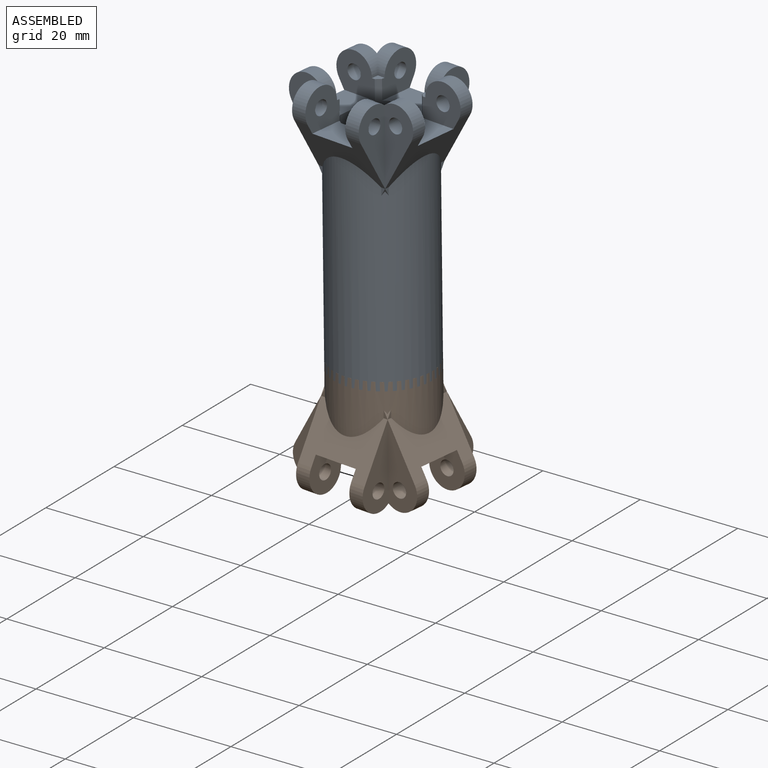
[diagram: assembled view]
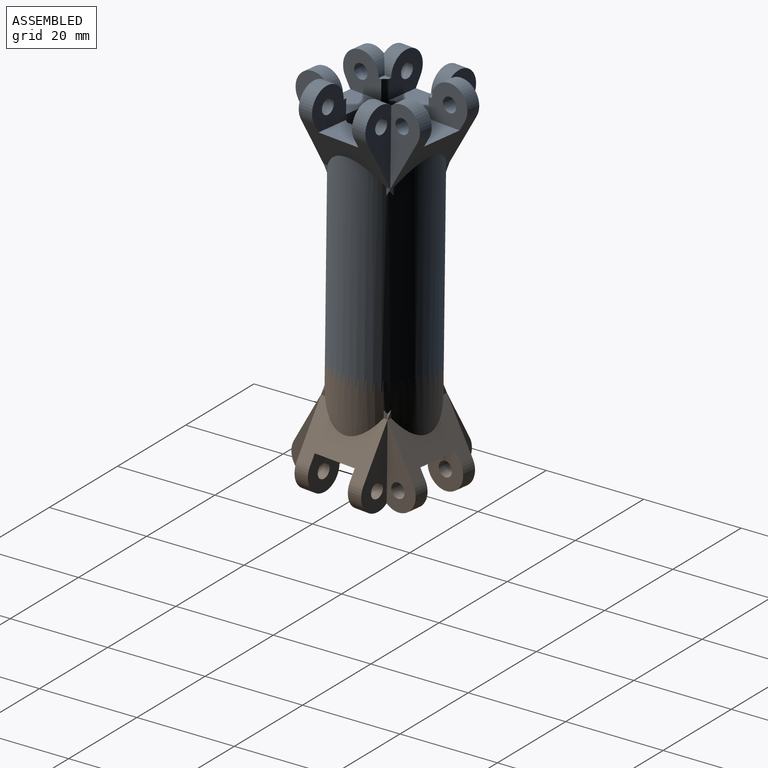
[diagram: assembled view, second angle]
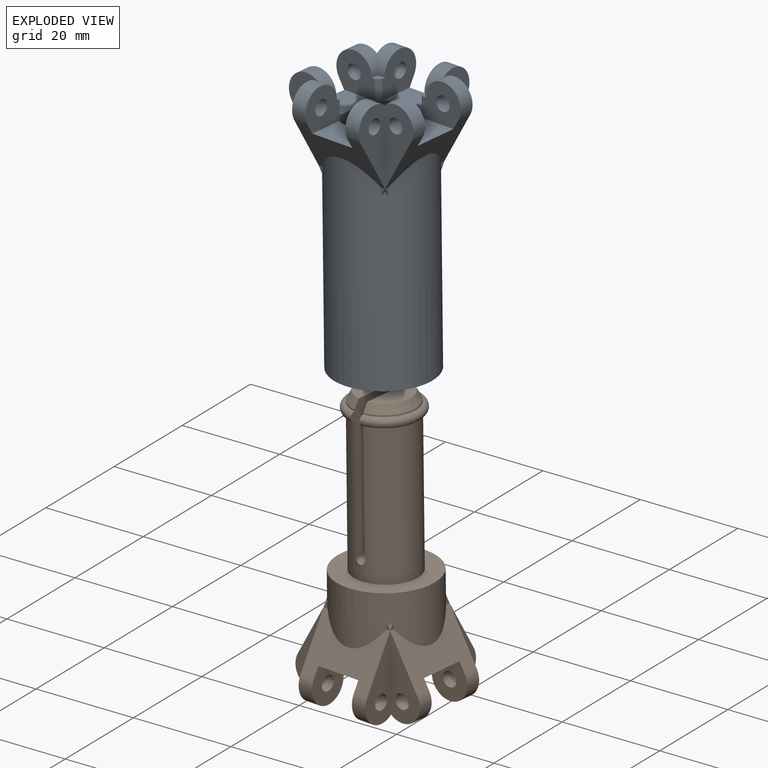
[diagram: exploded view]
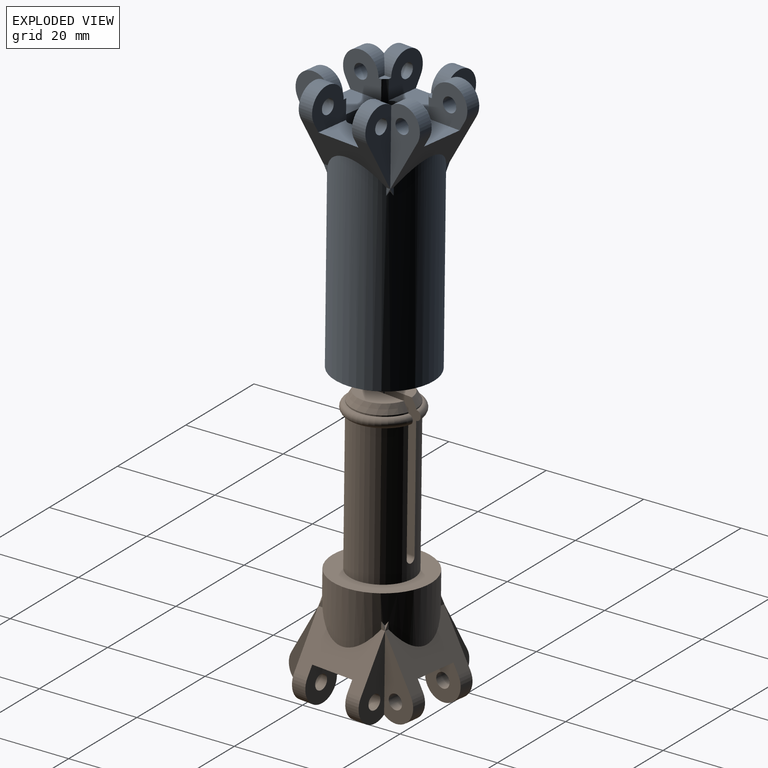
[diagram: exploded view, second angle]
ASSEMBLY  parts=2 mates=2
PART A: 73 faces, bbox 28x28x54 mm
  f0: cylinder r=7mm len=19mm, axis (0,0,-1), area 382.9mm2, adj f1,f3,f9,f12,f14,f18,f29,f32
  f1: plane 1.5x1.5mm, normal (0,0,1), area 1.9mm2, adj f0,f5,f10,f60,f70
  f2: cylinder r=7mm len=29mm, axis (0,0,-1), area 1275.5mm2, adj f28,f72
  f3: plane 1.5x1.5mm, normal (0,0,1), area 1.9mm2, adj f0,f4,f21,f61,f67
  f4: cylinder r=4mm len=8mm, axis (0,1,0), area 40.4mm2, adj f3,f21,f36,f38,f67
  f5: cylinder r=4mm len=8mm, axis (0,1,0), area 40.4mm2, adj f1,f10,f47,f48,f70
  f6: cylinder r=1.5mm len=3mm, axis (0,-1,0), area 28.3mm2, adj f48,f70
  f7: cylinder r=1.5mm len=3mm, axis (0,-1,0), area 28.3mm2, adj f38,f67
  f8: plane 15x10.33mm, normal (0,0.87,-0.5), area 112.8mm2, adj f11,f17,f19,f23,f27,f40,f53,f56
  f9: plane 1.5x1.5mm, normal (0,0,1), area 1.9mm2, adj f0,f11,f49,f58,f69
  f10: cylinder r=4mm len=8mm, axis (-1,0,0), area 40.4mm2, adj f1,f5,f13,f30,f60
  f11: cylinder r=4mm len=8mm, axis (-1,0,0), area 40.4mm2, adj f8,f9,f17,f49,f58
  f12: plane 10.93x7.21mm, normal (0,1,0), area 78.8mm2, adj f0,f29,f59
  f13: plane 15x10.33mm, normal (0,-0.87,-0.5), area 112.8mm2, adj f10,f19,f21,f30,f31,f42,f50,f59
  f14: plane 10.93x7.21mm, normal (0,-1,0), area 78.8mm2, adj f0,f32,f56
  f15: plane 1.53x0.89mm, normal (1,0,0), area 0.7mm2, adj f16,f19,f47
  f16: plane 1.55x0.9mm, normal (0,-0.87,-0.5), area 0.4mm2, adj f15,f19,f51
  f17: plane 16.33x6.5mm, normal (1,0,0), area 58.3mm2, adj f8,f11,f46,f64
  f18: plane 1.5x1.5mm, normal (0,0,1), area 1.9mm2, adj f0,f23,f37,f57,f66
  f19: cylinder r=10mm len=42.01mm, axis (0,0,-1), area 2526.6mm2, adj f8,f13,f15,f16,f20,f22,f24,f25
  f20: plane 1.53x0.89mm, normal (-1,0,0), area 0.7mm2, adj f19,f22,f36
  f21: cylinder r=4mm len=8mm, axis (-1,0,0), area 40.4mm2, adj f3,f4,f13,f31,f61
  f22: plane 1.55x0.9mm, normal (0,-0.87,-0.5), area 0.4mm2, adj f19,f20,f43
  f23: cylinder r=4mm len=8mm, axis (-1,0,0), area 40.4mm2, adj f8,f18,f27,f37,f57
  f24: plane 1.55x0.9mm, normal (0,0.87,-0.5), area 0.4mm2, adj f19,f26,f41
  f25: plane 1.55x0.9mm, normal (0,0.87,-0.5), area 0.4mm2, adj f19,f33,f52
  f26: plane 1.53x0.89mm, normal (-1,0,0), area 0.7mm2, adj f19,f24,f36
  f27: plane 16.33x6.5mm, normal (-1,0,0), area 58.3mm2, adj f8,f23,f35,f65
  f28: plane 20x20mm, normal (0,0,-1), area 160.2mm2, adj f2,f19
  f29: plane 7.21x1.73mm, normal (0,-0.87,-0.5), area 9.8mm2, adj f0,f12
  f30: plane 16.33x6.5mm, normal (1,0,0), area 58.3mm2, adj f10,f13,f48,f63
  f31: plane 16.33x6.5mm, normal (-1,0,0), area 58.3mm2, adj f13,f21,f38,f62
  f32: plane 7.21x1.73mm, normal (0,0.87,-0.5), area 9.8mm2, adj f0,f14
  f33: plane 1.53x0.89mm, normal (1,0,0), area 0.7mm2, adj f19,f25,f47
  f34: plane 7.21x1.73mm, normal (-0.87,0,-0.5), area 9.8mm2, adj f0,f39
  f35: plane 16.33x6.5mm, normal (0,1,0), area 58.3mm2, adj f27,f36,f37,f55
  f36: plane 15x10.33mm, normal (-0.87,0,-0.5), area 112.8mm2, adj f4,f19,f20,f26,f35,f37,f38,f66
  f37: cylinder r=4mm len=8mm, axis (0,1,0), area 40.4mm2, adj f18,f23,f35,f36,f66
  f38: plane 16.33x6.5mm, normal (0,-1,0), area 58.3mm2, adj f4,f7,f31,f36
  f39: plane 10.93x7.21mm, normal (1,0,0), area 78.8mm2, adj f0,f34,f68
  f40: plane 1.53x0.89mm, normal (0,1,0), area 0.7mm2, adj f8,f19,f41
  f41: plane 1.55x0.9mm, normal (-0.87,0,-0.5), area 0.4mm2, adj f19,f24,f40
  f42: plane 1.53x0.89mm, normal (0,-1,0), area 0.7mm2, adj f13,f19,f43
  f43: plane 1.55x0.9mm, normal (-0.87,0,-0.5), area 0.4mm2, adj f19,f22,f42
  f44: plane 7.21x1.73mm, normal (0.87,0,-0.5), area 9.8mm2, adj f0,f45
  f45: plane 10.93x7.21mm, normal (-1,0,0), area 78.8mm2, adj f0,f44,f71
  f46: plane 16.33x6.5mm, normal (0,1,0), area 58.3mm2, adj f17,f47,f49,f54
  f47: plane 15x10.33mm, normal (0.87,0,-0.5), area 112.8mm2, adj f5,f15,f19,f33,f46,f48,f49,f69
  f48: plane 16.33x6.5mm, normal (0,-1,0), area 58.3mm2, adj f5,f6,f30,f47
  f49: cylinder r=4mm len=8mm, axis (0,1,0), area 40.4mm2, adj f9,f11,f46,f47,f69
  f50: plane 1.53x0.89mm, normal (0,-1,0), area 0.7mm2, adj f13,f19,f51
  f51: plane 1.55x0.9mm, normal (0.87,0,-0.5), area 0.4mm2, adj f16,f19,f50
  f52: plane 1.55x0.9mm, normal (0.87,0,-0.5), area 0.4mm2, adj f19,f25,f53
  f53: plane 1.53x0.89mm, normal (0,1,0), area 0.7mm2, adj f8,f19,f52
  f54: cylinder r=1.5mm len=3mm, axis (0,-1,0), area 28.3mm2, adj f46,f69
  f55: cylinder r=1.5mm len=3mm, axis (0,-1,0), area 28.3mm2, adj f35,f66
  f56: plane 9x6.95mm, normal (0,0,1), area 57.3mm2, adj f0,f8,f14,f57,f58
  f57: plane 8.64x8mm, normal (1,0,0), area 50mm2, adj f0,f8,f18,f23,f56,f65
  f58: plane 8.64x8mm, normal (-1,0,0), area 50mm2, adj f0,f8,f9,f11,f56,f64
  f59: plane 9x6.95mm, normal (0,0,1), area 57.3mm2, adj f0,f12,f13,f60,f61
  f60: plane 8.64x8mm, normal (-1,0,0), area 50mm2, adj f0,f1,f10,f13,f59,f63
  f61: plane 8.64x8mm, normal (1,0,0), area 50mm2, adj f0,f3,f13,f21,f59,f62
  f62: cylinder r=1.5mm len=3mm, axis (-1,0,0), area 28.3mm2, adj f31,f61
  f63: cylinder r=1.5mm len=3mm, axis (-1,0,0), area 28.3mm2, adj f30,f60
  f64: cylinder r=1.5mm len=3mm, axis (-1,0,0), area 28.3mm2, adj f17,f58
  f65: cylinder r=1.5mm len=3mm, axis (-1,0,0), area 28.3mm2, adj f27,f57
  f66: plane 8.64x8mm, normal (0,-1,0), area 50mm2, adj f0,f18,f36,f37,f55,f68
  f67: plane 8.64x8mm, normal (0,1,0), area 50mm2, adj f0,f3,f4,f7,f36,f68
  f68: plane 9x6.95mm, normal (0,0,1), area 57.3mm2, adj f0,f36,f39,f66,f67
  f69: plane 8.64x8mm, normal (0,-1,0), area 50mm2, adj f0,f9,f47,f49,f54,f71
  f70: plane 8.64x8mm, normal (0,1,0), area 50mm2, adj f0,f1,f5,f6,f47,f71
  f71: plane 9x6.95mm, normal (0,0,1), area 57.3mm2, adj f0,f45,f47,f69,f70
  f72: torus R=7mm, axis (0,0,1), area 150.7mm2, adj f0,f2
PART B: 83 faces, bbox 28x28x56 mm
  f0: torus R=6.5mm, axis (0,0,-1), area 64.1mm2, adj f2,f74,f79
  f1: plane 10.82x4.5mm, normal (0,0,-1), area 36.6mm2, adj f79,f82
  f2: cylinder r=6.5mm len=12.85mm, axis (0,0,1), area 4.9mm2, adj f0,f79,f82
  f3: cylinder r=7mm len=11mm, axis (0,0,-1), area 28.8mm2, adj f6,f8,f12,f60,f62,f68,f69,f73
  f4: cylinder r=7mm len=11mm, axis (0,0,-1), area 28.8mm2, adj f6,f9,f11,f60,f61,f71,f72,f73
  f5: cylinder r=7mm len=11mm, axis (0,0,-1), area 28.8mm2, adj f7,f9,f18,f57,f59,f70,f72,f73
  f6: plane 7.21x7mm, normal (0,1,0), area 50.5mm2, adj f3,f4,f60,f73
  f7: plane 7.21x7mm, normal (0,-1,0), area 50.5mm2, adj f5,f10,f57,f73
  f8: plane 7.21x7mm, normal (1,0,0), area 50.5mm2, adj f3,f10,f69,f73
  f9: plane 7.21x7mm, normal (-1,0,0), area 50.5mm2, adj f4,f5,f72,f73
  f10: cylinder r=7mm len=11mm, axis (0,0,-1), area 28.8mm2, adj f7,f8,f25,f57,f58,f67,f69,f73
  f11: plane 1.5x1.5mm, normal (0,0,1), area 1.9mm2, adj f4,f14,f19,f61,f71
  f12: plane 1.5x1.5mm, normal (0,0,1), area 1.9mm2, adj f3,f13,f28,f62,f68
  f13: cylinder r=4mm len=8mm, axis (0,1,0), area 40.4mm2, adj f12,f28,f40,f42,f68
  f14: cylinder r=4mm len=8mm, axis (0,1,0), area 40.4mm2, adj f11,f19,f48,f49,f71
  f15: cylinder r=1.5mm len=3mm, axis (0,-1,0), area 28.3mm2, adj f49,f71
  f16: cylinder r=1.5mm len=3mm, axis (0,-1,0), area 28.3mm2, adj f42,f68
  f17: plane 15x10.33mm, normal (0,0.87,-0.5), area 112.8mm2, adj f20,f24,f26,f30,f34,f43,f54,f57
  f18: plane 1.5x1.5mm, normal (0,0,1), area 1.9mm2, adj f5,f20,f50,f59,f70
  f19: cylinder r=4mm len=8mm, axis (-1,0,0), area 40.4mm2, adj f11,f14,f21,f36,f61
  f20: cylinder r=4mm len=8mm, axis (-1,0,0), area 40.4mm2, adj f17,f18,f24,f50,f59
  f21: plane 15x10.33mm, normal (0,-0.87,-0.5), area 112.8mm2, adj f19,f26,f28,f36,f37,f45,f51,f60
  f22: plane 1.53x0.89mm, normal (1,0,0), area 0.7mm2, adj f23,f26,f48
  f23: plane 1.55x0.9mm, normal (0,-0.87,-0.5), area 0.4mm2, adj f22,f26,f52
  f24: plane 16.33x6.5mm, normal (1,0,0), area 58.3mm2, adj f17,f20,f47,f65
  f25: plane 1.5x1.5mm, normal (0,0,1), area 1.9mm2, adj f10,f30,f41,f58,f67
  f26: cylinder r=10mm len=20mm, axis (0,0,-1), area 578.8mm2, adj f17,f21,f22,f23,f27,f29,f31,f32
  f27: plane 1.53x0.89mm, normal (-1,0,0), area 0.7mm2, adj f26,f29,f40
  f28: cylinder r=4mm len=8mm, axis (-1,0,0), area 40.4mm2, adj f12,f13,f21,f37,f62
  f29: plane 1.55x0.9mm, normal (0,-0.87,-0.5), area 0.4mm2, adj f26,f27,f46
  f30: cylinder r=4mm len=8mm, axis (-1,0,0), area 40.4mm2, adj f17,f25,f34,f41,f58
  f31: plane 1.55x0.9mm, normal (0,0.87,-0.5), area 0.4mm2, adj f26,f33,f44
  f32: plane 1.55x0.9mm, normal (0,0.87,-0.5), area 0.4mm2, adj f26,f38,f53
  f33: plane 1.53x0.89mm, normal (-1,0,0), area 0.7mm2, adj f26,f31,f40
  f34: plane 16.33x6.5mm, normal (-1,0,0), area 58.3mm2, adj f17,f30,f39,f66
  f35: plane 20x20mm, normal (0,0,-1), area 181.4mm2, adj f26,f74
  f36: plane 16.33x6.5mm, normal (1,0,0), area 58.3mm2, adj f19,f21,f49,f64
  f37: plane 16.33x6.5mm, normal (-1,0,0), area 58.3mm2, adj f21,f28,f42,f63
  f38: plane 1.53x0.89mm, normal (1,0,0), area 0.7mm2, adj f26,f32,f48
  f39: plane 16.33x6.5mm, normal (0,1,0), area 58.3mm2, adj f34,f40,f41,f56
  f40: plane 15x10.33mm, normal (-0.87,0,-0.5), area 112.8mm2, adj f13,f26,f27,f33,f39,f41,f42,f67
  f41: cylinder r=4mm len=8mm, axis (0,1,0), area 40.4mm2, adj f25,f30,f39,f40,f67
  f42: plane 16.33x6.5mm, normal (0,-1,0), area 58.3mm2, adj f13,f16,f37,f40
  f43: plane 1.53x0.89mm, normal (0,1,0), area 0.7mm2, adj f17,f26,f44
  f44: plane 1.55x0.9mm, normal (-0.87,0,-0.5), area 0.4mm2, adj f26,f31,f43
  f45: plane 1.53x0.89mm, normal (0,-1,0), area 0.7mm2, adj f21,f26,f46
  f46: plane 1.55x0.9mm, normal (-0.87,0,-0.5), area 0.4mm2, adj f26,f29,f45
  f47: plane 16.33x6.5mm, normal (0,1,0), area 58.3mm2, adj f24,f48,f50,f55
  f48: plane 15x10.33mm, normal (0.87,0,-0.5), area 112.8mm2, adj f14,f22,f26,f38,f47,f49,f50,f70
  f49: plane 16.33x6.5mm, normal (0,-1,0), area 58.3mm2, adj f14,f15,f36,f48
  f50: cylinder r=4mm len=8mm, axis (0,1,0), area 40.4mm2, adj f18,f20,f47,f48,f70
  f51: plane 1.53x0.89mm, normal (0,-1,0), area 0.7mm2, adj f21,f26,f52
  f52: plane 1.55x0.9mm, normal (0.87,0,-0.5), area 0.4mm2, adj f23,f26,f51
  f53: plane 1.55x0.9mm, normal (0.87,0,-0.5), area 0.4mm2, adj f26,f32,f54
  f54: plane 1.53x0.89mm, normal (0,1,0), area 0.7mm2, adj f17,f26,f53
  f55: cylinder r=1.5mm len=3mm, axis (0,-1,0), area 28.3mm2, adj f47,f70
  f56: cylinder r=1.5mm len=3mm, axis (0,-1,0), area 28.3mm2, adj f39,f67
  f57: plane 9x6.95mm, normal (0,0,1), area 57.3mm2, adj f5,f7,f10,f17,f58,f59
  f58: plane 8.64x8mm, normal (1,0,0), area 50mm2, adj f10,f17,f25,f30,f57,f66
  f59: plane 8.64x8mm, normal (-1,0,0), area 50mm2, adj f5,f17,f18,f20,f57,f65
  f60: plane 9x6.95mm, normal (0,0,1), area 57.3mm2, adj f3,f4,f6,f21,f61,f62
  f61: plane 8.64x8mm, normal (-1,0,0), area 50mm2, adj f4,f11,f19,f21,f60,f64
  f62: plane 8.64x8mm, normal (1,0,0), area 50mm2, adj f3,f12,f21,f28,f60,f63
  f63: cylinder r=1.5mm len=3mm, axis (-1,0,0), area 28.3mm2, adj f37,f62
  f64: cylinder r=1.5mm len=3mm, axis (-1,0,0), area 28.3mm2, adj f36,f61
  f65: cylinder r=1.5mm len=3mm, axis (-1,0,0), area 28.3mm2, adj f24,f59
  f66: cylinder r=1.5mm len=3mm, axis (-1,0,0), area 28.3mm2, adj f34,f58
  f67: plane 8.64x8mm, normal (0,-1,0), area 50mm2, adj f10,f25,f40,f41,f56,f69
  f68: plane 8.64x8mm, normal (0,1,0), area 50mm2, adj f3,f12,f13,f16,f40,f69
  f69: plane 9x6.95mm, normal (0,0,1), area 57.3mm2, adj f3,f8,f10,f40,f67,f68
  f70: plane 8.64x8mm, normal (0,-1,0), area 50mm2, adj f5,f18,f48,f50,f55,f72
  f71: plane 8.64x8mm, normal (0,1,0), area 50mm2, adj f4,f11,f14,f15,f48,f72
  f72: plane 9x6.95mm, normal (0,0,1), area 57.3mm2, adj f4,f5,f9,f48,f70,f71
  f73: plane 12x12mm, normal (0,0,1), area 134.4mm2, adj f3,f4,f5,f6,f7,f8,f9,f10
  f74: cylinder r=6.5mm len=29mm, axis (0,0,1), area 1080.8mm2, adj f0,f35,f75,f78,f79,f80
  f75: torus R=6.5mm, axis (0,0,-1), area 64.1mm2, adj f74,f77,f78
  f76: plane 10.82x4.5mm, normal (0,0,-1), area 36.6mm2, adj f78,f81
  f77: cylinder r=6.5mm len=12.85mm, axis (0,0,1), area 4.9mm2, adj f75,f78,f81
  f78: plane 29.01x14.88mm, normal (0,-1,0), area 373.9mm2, adj f74,f75,f76,f77,f80,f81
  f79: plane 29.01x14.88mm, normal (0,1,0), area 373.9mm2, adj f0,f1,f2,f74,f80,f82
  f80: cylinder r=1mm len=13mm, axis (-1,0,0), area 40.6mm2, adj f74,f78,f79
  f81: cone r=5.5mm half-angle=30deg, axis (0,0,1), area 33.7mm2, adj f76,f77,f78
  f82: cone r=5.5mm half-angle=30deg, axis (0,0,1), area 33.7mm2, adj f1,f2,f79
PLACE A rot(axis=(-0.01,-0.01,1),83.3deg) t=(-10.01,-9.9,-10.51)mm
PLACE B rot(axis=(-0.66,0.75,-0.01),179.5deg) t=(-11.18,-9.66,72.22)mm
MATE slider A.f19 <-> B.f2  axis (0.01,0,-1) through (-9.95,-9.91,-14.39)mm
MATE parallel A.f19 <-> B.f26  axis (0.01,0,-1) through (-9.65,-9.97,-35.51)mm
